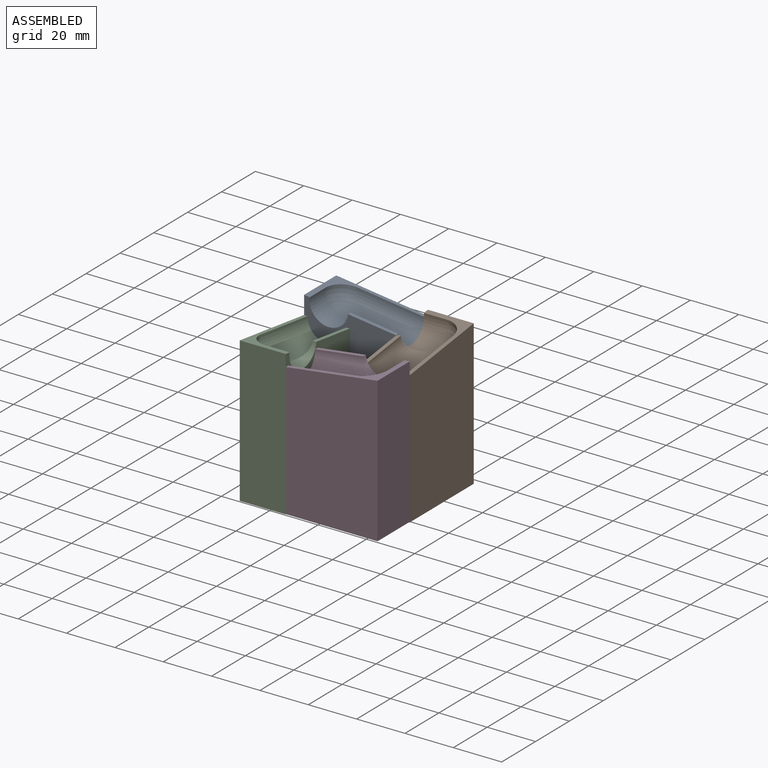
[diagram: assembled view]
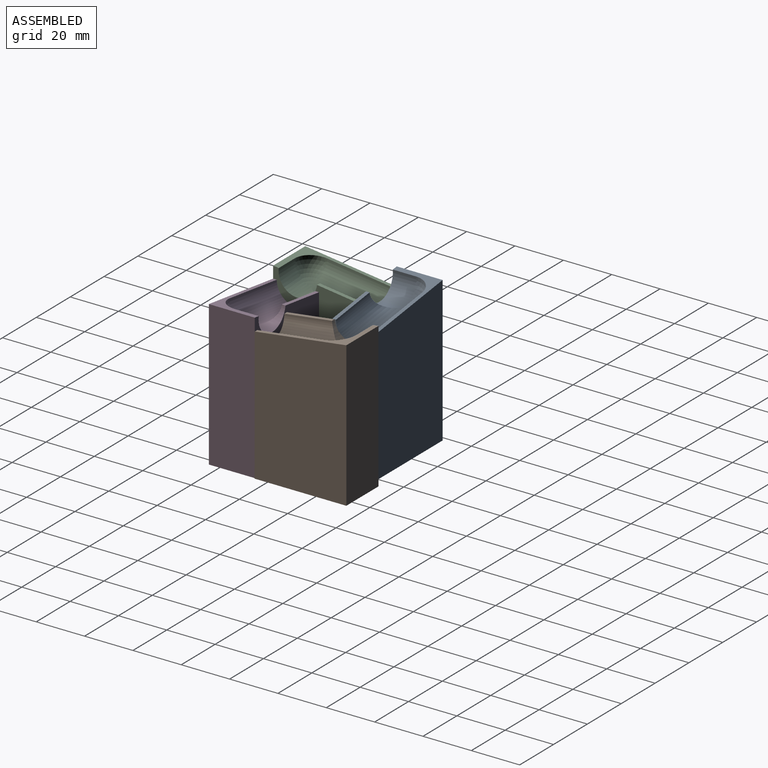
[diagram: assembled view, second angle]
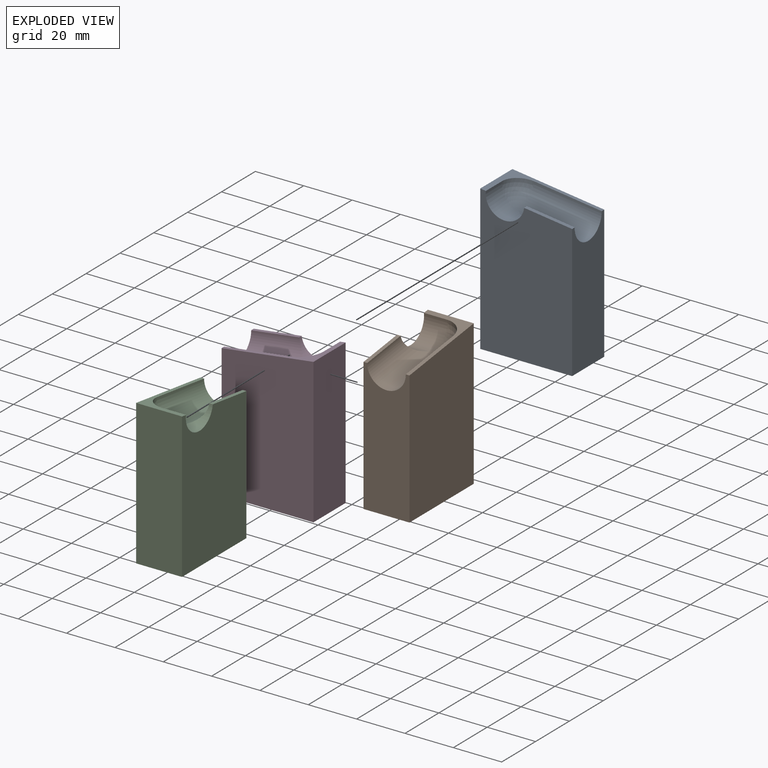
[diagram: exploded view]
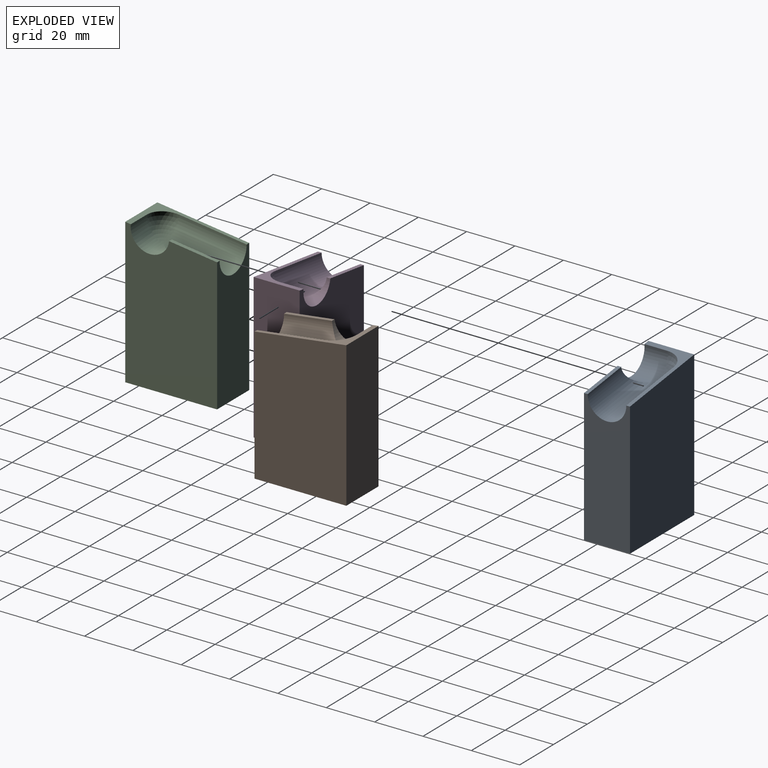
[diagram: exploded view, second angle]
ASSEMBLY  parts=4 mates=3
PART A: 10 faces, bbox 39x19x60 mm
  f0: plane 38x19mm, normal (0.13,0,0.99), area 112mm2, adj f1,f2,f5,f6,f7,f8,f9
  f1: cylinder r=8mm len=29.85mm, axis (0.99,0,-0.13), area 656.6mm2, adj f0,f2,f3,f5,f9
  f2: sphere r=8mm, area 100.5mm2, adj f0,f1,f9
  f3: plane 19.83x2.61mm, normal (0.13,0,0.99), area 30mm2, adj f1,f5,f8,f9
  f4: plane 38x19mm, normal (0,0,-1), area 722mm2, adj f5,f6,f7,f8
  f5: plane 55x19mm, normal (1,0,0), area 943.6mm2, adj f0,f1,f3,f4,f7,f8
  f6: plane 60x19mm, normal (-1,0,0), area 1140mm2, adj f0,f4,f7,f8
  f7: plane 60x38mm, normal (0,1,0), area 2185mm2, adj f0,f4,f5,f6
  f8: plane 60x38mm, normal (0,-1,0), area 2084.5mm2, adj f0,f3,f4,f5,f6,f9
  f9: cylinder r=8mm len=15.93mm, axis (0,-1,0), area 174.8mm2, adj f0,f1,f2,f3,f8
PART B: same geometry as A
PART C: same geometry as A
PART D: same geometry as A
PLACE A t=(7.3,-4.39,-0.43)mm
PLACE B rot(axis=(0,0,-1),90deg) t=(7.2,-23.39,-3.12)mm
PLACE C rot(axis=(0,0,1),90deg) t=(-11.81,-4.27,-3.04)mm
PLACE D rot(axis=(0,0,1),180deg) t=(-11.8,-23.27,-2.91)mm
MATE planar C.f6 <-> D.f7  axis (0,-1,0) through (-11.81,-42.27,26.96)mm
MATE planar A.f7 <-> B.f6  axis (0,1,0) through (7.3,14.61,27.07)mm
MATE planar D.f6 <-> B.f7  axis (1,0,0) through (26.2,-23.27,27.09)mm
